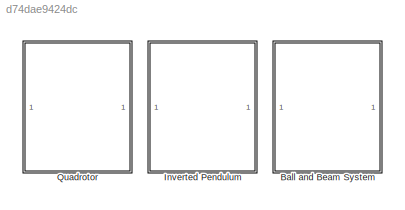
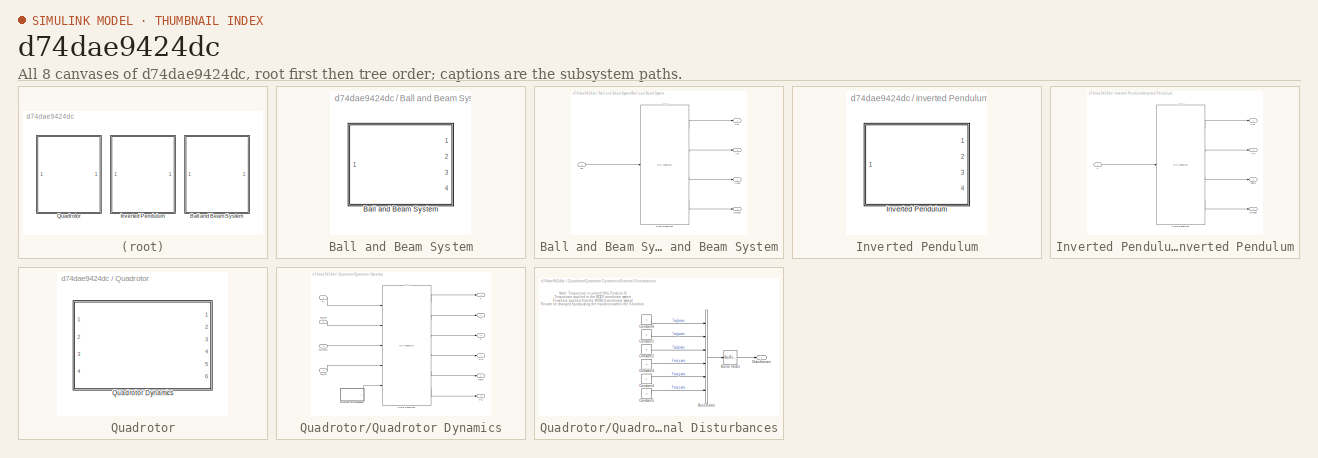
[diagram: thumbnail index - all 8 canvases of the model, root first then tree order]
MODEL slx_d74dae9424dc
KIND library
CONFIG AbsTol = auto
CONFIG EnableMultiTasking = off
CONFIG FixedStep = auto
CONFIG MaxStep = auto
CONFIG MinStep = auto
CONFIG RelTol = 1e-3
CONFIG SampleTimeConstraint = Unconstrained
CONFIG Solver = VariableStepAuto
CONFIG SolverName = VariableStepAuto
CONFIG StartTime = 0.0
CONFIG StopTime = 10.0
BLOCK [SubSystem] Ball and Beam System
  Ports = []
  RequestExecContextInheritance = off
BLOCK [SubSystem] Ball and Beam System/Ball and Beam System
  Ports = [1, 4]
  RequestExecContextInheritance = off
  ShowPortLabels = none
BLOCK [Outport] Ball and Beam System/Ball and Beam System/Alpha
  Port = 3
BLOCK [Outport] Ball and Beam System/Ball and Beam System/Omega
  Port = 4
BLOCK [Outport] Ball and Beam System/Ball and Beam System/Pos
BLOCK [M-S-Function] Ball and Beam System/Ball and Beam System/State Equations
  FunctionName = BallAndBeamSystem
  Parameters = Mba,R,J,Mbe,L
  Ports = [1, 4]
BLOCK [Outport] Ball and Beam System/Ball and Beam System/Vel
  Port = 2
BLOCK [Inport] Ball and Beam System/Ball and Beam System/tau
BLOCK [SubSystem] Inverted Pendulum
  Ports = []
  RequestExecContextInheritance = off
BLOCK [SubSystem] Inverted Pendulum/Inverted Pendulum
  Ports = [1, 4]
  RequestExecContextInheritance = off
  ShowPortLabels = none
BLOCK [Inport] Inverted Pendulum/Inverted Pendulum/F
BLOCK [Outport] Inverted Pendulum/Inverted Pendulum/Omega
  Port = 4
BLOCK [Outport] Inverted Pendulum/Inverted Pendulum/Pos
BLOCK [M-S-Function] Inverted Pendulum/Inverted Pendulum/State Equations
  FunctionName = InvertedPendulumModel
  Parameters = Mp,Mc,L,Kc,Kp,x,theta
  Ports = [1, 4]
BLOCK [Outport] Inverted Pendulum/Inverted Pendulum/Theta
  Port = 3
BLOCK [Outport] Inverted Pendulum/Inverted Pendulum/Vel
  Port = 2
BLOCK [SubSystem] Quadrotor
  Ports = []
  RequestExecContextInheritance = off
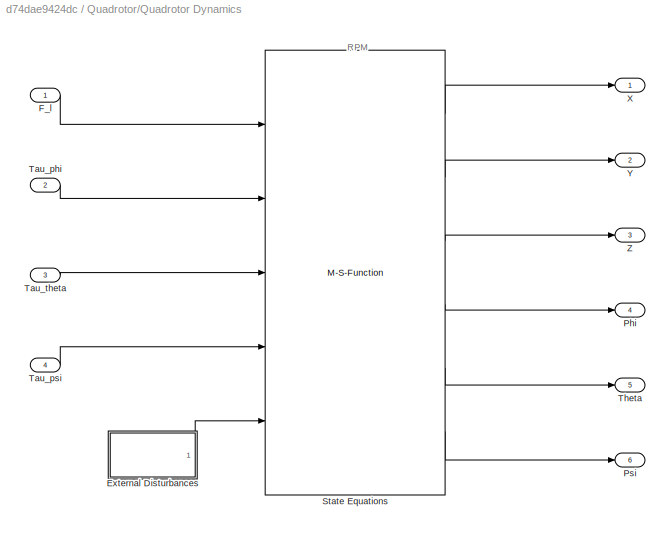
BLOCK [SubSystem] Quadrotor/Quadrotor Dynamics
  Ports = [4, 6]
  RequestExecContextInheritance = off
  ShowPortLabels = none
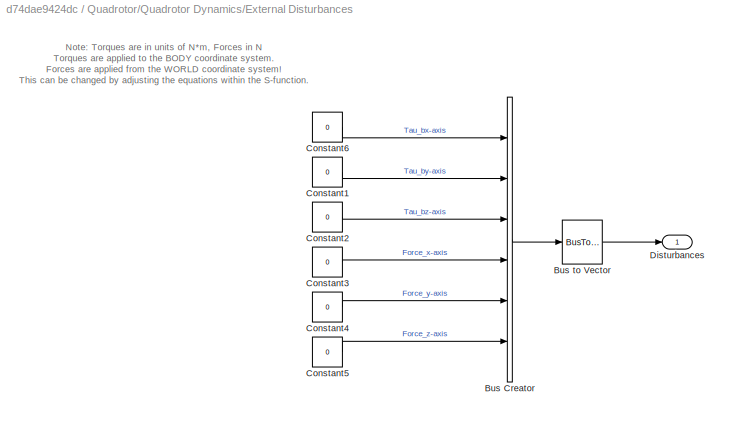
BLOCK [SubSystem] Quadrotor/Quadrotor Dynamics/External Disturbances
  Ports = [0, 1]
  RequestExecContextInheritance = off
BLOCK [BusCreator] Quadrotor/Quadrotor Dynamics/External Disturbances/Bus Creator
  DisplayOption = bar
  InheritFromInputs = on
  Inputs = 6
  Ports = [6, 1]
BLOCK [BusToVector] Quadrotor/Quadrotor Dynamics/External Disturbances/Bus to Vector
BLOCK [Constant] Quadrotor/Quadrotor Dynamics/External Disturbances/Constant1
  Value = 0
BLOCK [Constant] Quadrotor/Quadrotor Dynamics/External Disturbances/Constant2
  Value = 0
BLOCK [Constant] Quadrotor/Quadrotor Dynamics/External Disturbances/Constant3
  Value = 0
BLOCK [Constant] Quadrotor/Quadrotor Dynamics/External Disturbances/Constant4
  Value = 0
BLOCK [Constant] Quadrotor/Quadrotor Dynamics/External Disturbances/Constant5
  Value = 0
BLOCK [Constant] Quadrotor/Quadrotor Dynamics/External Disturbances/Constant6
  Value = 0
BLOCK [Outport] Quadrotor/Quadrotor Dynamics/External Disturbances/Disturbances 
BLOCK [Inport] Quadrotor/Quadrotor Dynamics/F_l
BLOCK [Outport] Quadrotor/Quadrotor Dynamics/Phi
  Port = 4
BLOCK [Outport] Quadrotor/Quadrotor Dynamics/Psi
  Port = 6
BLOCK [M-S-Function] Quadrotor/Quadrotor Dynamics/State Equations
  FunctionName = QuadrotorModel
  Parameters = I,m
  Ports = [5, 6]
BLOCK [Inport] Quadrotor/Quadrotor Dynamics/Tau_phi
  Port = 2
BLOCK [Inport] Quadrotor/Quadrotor Dynamics/Tau_psi
  Port = 4
BLOCK [Inport] Quadrotor/Quadrotor Dynamics/Tau_theta
  Port = 3
BLOCK [Outport] Quadrotor/Quadrotor Dynamics/Theta
  Port = 5
BLOCK [Outport] Quadrotor/Quadrotor Dynamics/X
BLOCK [Outport] Quadrotor/Quadrotor Dynamics/Y
  Port = 2
BLOCK [Outport] Quadrotor/Quadrotor Dynamics/Z
  Port = 3
ANNOTATION Ball and Beam System/Ball and Beam System: RPM
ANNOTATION Inverted Pendulum/Inverted Pendulum: RPM
ANNOTATION Quadrotor/Quadrotor Dynamics: RPM
ANNOTATION Quadrotor/Quadrotor Dynamics/External Disturbances: Note: Torques are in units of N*m, Forces in N Torques are applied to the BODY coordinate system. Forces are applied from the WORLD coordinate system! This can be changed by adjusting the equations within the S-function.
LINE Ball and Beam System/Ball and Beam System/State Equations:1 -> Ball and Beam System/Ball and Beam System/Pos:1
LINE Ball and Beam System/Ball and Beam System/State Equations:2 -> Ball and Beam System/Ball and Beam System/Vel:1
LINE Ball and Beam System/Ball and Beam System/State Equations:3 -> Ball and Beam System/Ball and Beam System/Alpha:1
LINE Ball and Beam System/Ball and Beam System/State Equations:4 -> Ball and Beam System/Ball and Beam System/Omega:1
LINE Ball and Beam System/Ball and Beam System/tau:1 -> Ball and Beam System/Ball and Beam System/State Equations:1
LINE Inverted Pendulum/Inverted Pendulum/F:1 -> Inverted Pendulum/Inverted Pendulum/State Equations:1
LINE Inverted Pendulum/Inverted Pendulum/State Equations:1 -> Inverted Pendulum/Inverted Pendulum/Pos:1
LINE Inverted Pendulum/Inverted Pendulum/State Equations:2 -> Inverted Pendulum/Inverted Pendulum/Vel:1
LINE Inverted Pendulum/Inverted Pendulum/State Equations:3 -> Inverted Pendulum/Inverted Pendulum/Theta:1
LINE Inverted Pendulum/Inverted Pendulum/State Equations:4 -> Inverted Pendulum/Inverted Pendulum/Omega:1
LINE Quadrotor/Quadrotor Dynamics/External Disturbances/Bus Creator:1 -> Quadrotor/Quadrotor Dynamics/External Disturbances/Bus to Vector:1
LINE Quadrotor/Quadrotor Dynamics/External Disturbances/Bus to Vector:1 -> Quadrotor/Quadrotor Dynamics/External Disturbances/Disturbances :1
LINE Quadrotor/Quadrotor Dynamics/External Disturbances/Constant1:1 -> Quadrotor/Quadrotor Dynamics/External Disturbances/Bus Creator:2
LINE Quadrotor/Quadrotor Dynamics/External Disturbances/Constant2:1 -> Quadrotor/Quadrotor Dynamics/External Disturbances/Bus Creator:3
LINE Quadrotor/Quadrotor Dynamics/External Disturbances/Constant3:1 -> Quadrotor/Quadrotor Dynamics/External Disturbances/Bus Creator:4
LINE Quadrotor/Quadrotor Dynamics/External Disturbances/Constant4:1 -> Quadrotor/Quadrotor Dynamics/External Disturbances/Bus Creator:5
LINE Quadrotor/Quadrotor Dynamics/External Disturbances/Constant5:1 -> Quadrotor/Quadrotor Dynamics/External Disturbances/Bus Creator:6
LINE Quadrotor/Quadrotor Dynamics/External Disturbances/Constant6:1 -> Quadrotor/Quadrotor Dynamics/External Disturbances/Bus Creator:1
LINE Quadrotor/Quadrotor Dynamics/External Disturbances:1 -> Quadrotor/Quadrotor Dynamics/State Equations:5
LINE Quadrotor/Quadrotor Dynamics/F_l:1 -> Quadrotor/Quadrotor Dynamics/State Equations:1
LINE Quadrotor/Quadrotor Dynamics/State Equations:1 -> Quadrotor/Quadrotor Dynamics/X:1
LINE Quadrotor/Quadrotor Dynamics/State Equations:2 -> Quadrotor/Quadrotor Dynamics/Y:1
LINE Quadrotor/Quadrotor Dynamics/State Equations:3 -> Quadrotor/Quadrotor Dynamics/Z:1
LINE Quadrotor/Quadrotor Dynamics/State Equations:4 -> Quadrotor/Quadrotor Dynamics/Phi:1
LINE Quadrotor/Quadrotor Dynamics/State Equations:5 -> Quadrotor/Quadrotor Dynamics/Theta:1
LINE Quadrotor/Quadrotor Dynamics/State Equations:6 -> Quadrotor/Quadrotor Dynamics/Psi:1
LINE Quadrotor/Quadrotor Dynamics/Tau_phi:1 -> Quadrotor/Quadrotor Dynamics/State Equations:2
LINE Quadrotor/Quadrotor Dynamics/Tau_psi:1 -> Quadrotor/Quadrotor Dynamics/State Equations:4
LINE Quadrotor/Quadrotor Dynamics/Tau_theta:1 -> Quadrotor/Quadrotor Dynamics/State Equations:3
